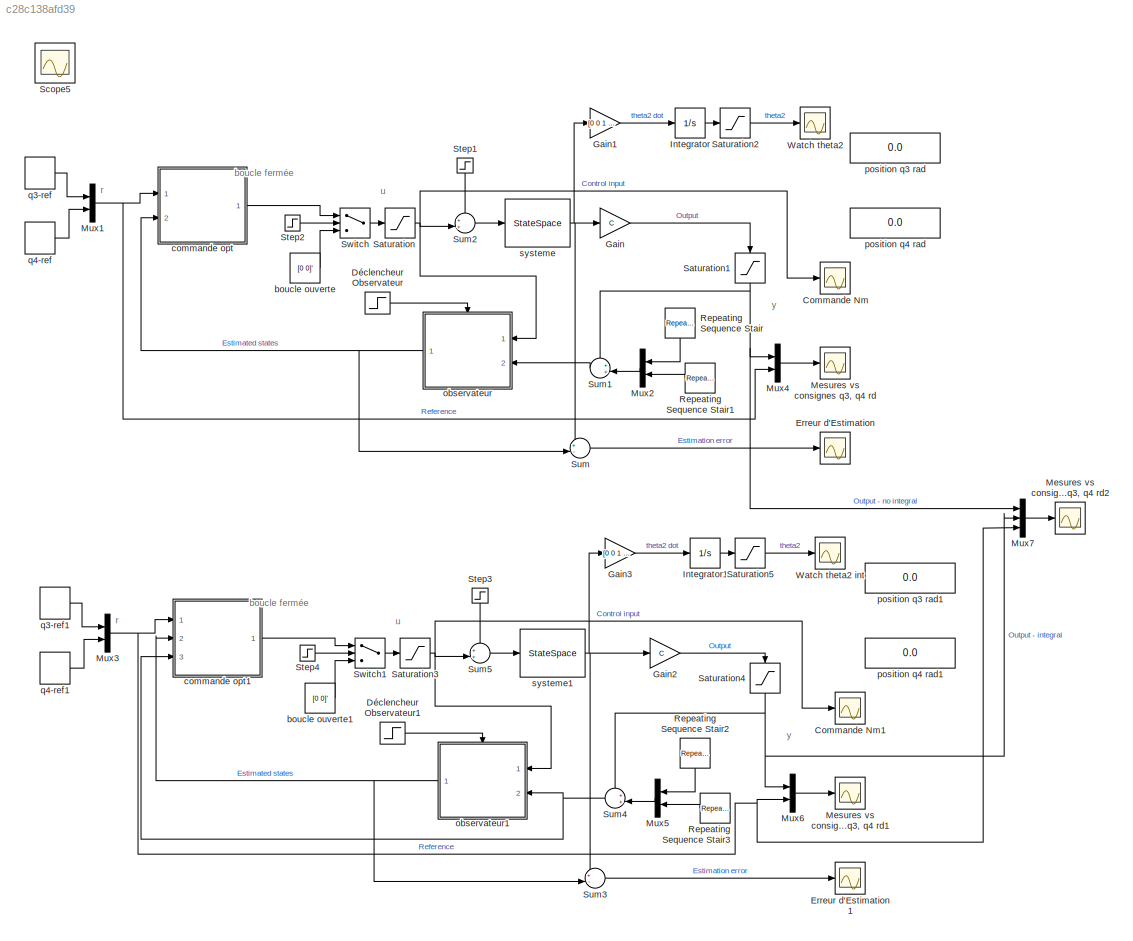
MODEL slx_c28c138afd39
KIND model
CONFIG AbsTol = auto
CONFIG EnableMultiTasking = on
CONFIG FixedStep = Ts
CONFIG MaxStep = auto
CONFIG MinStep = auto
CONFIG RelTol = 1e-3
CONFIG SampleTimeConstraint = Unconstrained
CONFIG Solver = ode3
CONFIG SolverName = ode3
CONFIG StartTime = 0.0
CONFIG StopTime = 70
BLOCK [Scope] Commande Nm
  Floating = off
  NumInputPorts = 1
  Ports = [1]
  ScopeSpecificationString = Simulink.scopes.TimeScopeBlockCfg('CurrentConfiguration', extmgr.ConfigurationSet(extmgr.Configuration('Core','General UI',true,'FigureColor',[1 1 1]),extmgr.Configuration('Core','Source UI',true),extmgr.Configuration('Sources','WiredSimulink',true,'DataLogging',true,'DataLoggingVariableName','commande','DataLoggingSaveFormat','StructureWithTime','DataLoggingDecimation','1','DataLoggingDecimateDat...<+2081ch>
BLOCK [Scope] Commande Nm1
  Floating = off
  NumInputPorts = 1
  Ports = [1]
  ScopeSpecificationString = Simulink.scopes.TimeScopeBlockCfg('CurrentConfiguration', extmgr.ConfigurationSet(extmgr.Configuration('Core','General UI',true,'FigureColor',[1 1 1]),extmgr.Configuration('Core','Source UI',true),extmgr.Configuration('Sources','WiredSimulink',true,'DataLoggingVariableName','ScopeData1','DataLoggingSaveFormat','StructureWithTime','DataLoggingDecimation','1','DataLoggingDecimateData',true),extmgr.C...<+2064ch>
BLOCK [Step] Déclencheur Observateur
  SampleTime = 0
BLOCK [Step] Déclencheur Observateur1
  SampleTime = 0
BLOCK [Scope] Erreur d'Estimation 
  Floating = off
  NumInputPorts = 1
  Ports = [1]
  ScopeSpecificationString = Simulink.scopes.TimeScopeBlockCfg('CurrentConfiguration', extmgr.ConfigurationSet(extmgr.Configuration('Core','General UI',true,'FigureColor',[1 1 1]),extmgr.Configuration('Core','Source UI',true),extmgr.Configuration('Sources','WiredSimulink',true,'DataLogging',true,'DataLoggingVariableName','theta3','DataLoggingSaveFormat','StructureWithTime','DataLoggingDecimation','1','DataLoggingDecimateData'...<+2603ch>
BLOCK [Scope] Erreur d'Estimation 1
  Floating = off
  NumInputPorts = 1
  Ports = [1]
  ScopeSpecificationString = Simulink.scopes.TimeScopeBlockCfg('CurrentConfiguration', extmgr.ConfigurationSet(extmgr.Configuration('Core','General UI',true,'FigureColor',[1 1 1]),extmgr.Configuration('Core','Source UI',true),extmgr.Configuration('Sources','WiredSimulink',true,'DataLogging',true,'DataLoggingVariableName','ScopeData2','DataLoggingSaveFormat','StructureWithTime','DataLoggingDecimation','1','DataLoggingDecimateD...<+2607ch>
BLOCK [Gain] Gain
  Gain = C
  Multiplication = Matrix(K*u) (u vector)
  OutDataTypeStr = Inherit: Inherit via internal rule
  ParamDataTypeStr = Inherit: Inherit via internal rule
  SaturateOnIntegerOverflow = off
BLOCK [Gain] Gain1
  Gain = [0 0 1 0 0]
  Multiplication = Matrix(K*u) (u vector)
  OutDataTypeStr = Inherit: Inherit via internal rule
  ParamDataTypeStr = Inherit: Inherit via internal rule
  SaturateOnIntegerOverflow = off
BLOCK [Gain] Gain2
  Gain = C
  Multiplication = Matrix(K*u) (u vector)
  OutDataTypeStr = Inherit: Inherit via internal rule
  ParamDataTypeStr = Inherit: Inherit via internal rule
  SaturateOnIntegerOverflow = off
BLOCK [Gain] Gain3
  Gain = [0 0 1 0 0]
  Multiplication = Matrix(K*u) (u vector)
  OutDataTypeStr = Inherit: Inherit via internal rule
  ParamDataTypeStr = Inherit: Inherit via internal rule
  SaturateOnIntegerOverflow = off
BLOCK [Integrator] Integrator
  Ports = [1, 1]
BLOCK [Integrator] Integrator1
  Ports = [1, 1]
BLOCK [Scope] Mesures vs consignes q3, q4 rd
  Floating = off
  NumInputPorts = 1
  Ports = [1]
  ScopeSpecificationString = Simulink.scopes.TimeScopeBlockCfg('CurrentConfiguration', extmgr.ConfigurationSet(extmgr.Configuration('Core','General UI',true,'FigureColor',[1 1 1]),extmgr.Configuration('Core','Source UI',true),extmgr.Configuration('Sources','WiredSimulink',true,'DataLogging',true,'DataLoggingVariableName','consigne','DataLoggingSaveFormat','StructureWithTime','DataLoggingDecimation','1','DataLoggingDecimateDat...<+2346ch>
BLOCK [Scope] Mesures vs consignes q3, q4 rd1
  Floating = off
  NumInputPorts = 1
  Ports = [1]
  ScopeSpecificationString = Simulink.scopes.TimeScopeBlockCfg('CurrentConfiguration', extmgr.ConfigurationSet(extmgr.Configuration('Core','General UI',true,'FigureColor',[1 1 1]),extmgr.Configuration('Core','Source UI',true),extmgr.Configuration('Sources','WiredSimulink',true,'DataLogging',true,'DataLoggingVariableName','ScopeData3','DataLoggingSaveFormat','StructureWithTime','DataLoggingDecimation','1','DataLoggingDecimateD...<+2342ch>
BLOCK [Scope] Mesures vs consignes q3, q4 rd2
  Floating = off
  NumInputPorts = 1
  Ports = [1]
  ScopeSpecificationString = Simulink.scopes.TimeScopeBlockCfg('CurrentConfiguration', extmgr.ConfigurationSet(extmgr.Configuration('Core','General UI',true,'FigureColor',[1 1 1]),extmgr.Configuration('Core','Source UI',true),extmgr.Configuration('Sources','WiredSimulink',true,'DataLogging',true,'DataLoggingVariableName','ScopeData1','DataLoggingSaveFormat','StructureWithTime','DataLoggingDecimation','1','DataLoggingDecimateD...<+2393ch>
BLOCK [Mux] Mux1
  DisplayOption = bar
  Inputs = 2
  Ports = [2, 1]
BLOCK [Mux] Mux2
  DisplayOption = bar
  Inputs = 2
  Ports = [2, 1]
BLOCK [Mux] Mux3
  DisplayOption = bar
  Inputs = 2
  Ports = [2, 1]
BLOCK [Mux] Mux4
  DisplayOption = bar
  Inputs = 2
  Ports = [2, 1]
BLOCK [Mux] Mux5
  Commented = on
  DisplayOption = bar
  Inputs = 2
  Ports = [2, 1]
BLOCK [Mux] Mux6
  DisplayOption = bar
  Inputs = 2
  Ports = [2, 1]
BLOCK [Mux] Mux7
  DisplayOption = bar
  Inputs = 3
  Ports = [3, 1]
BLOCK [Reference] Repeating Sequence Stair  REF=simulink/Sources/Repeating
Sequence
Stair
  Ports = [0, 1]
  SourceBlock = simulink/Sources/Repeating\nSequence\nStair
  SourceProductBaseCode = SL
  SourceProductName = Simulink
  SourceType = Repeating Sequence Stair
BLOCK [Reference] Repeating Sequence Stair1  REF=simulink/Sources/Repeating
Sequence
Stair
  Ports = [0, 1]
  SourceBlock = simulink/Sources/Repeating\nSequence\nStair
  SourceProductBaseCode = SL
  SourceProductName = Simulink
  SourceType = Repeating Sequence Stair
BLOCK [Reference] Repeating Sequence Stair2  REF=simulink/Sources/Repeating
Sequence
Stair
  Ports = [0, 1]
  SourceBlock = simulink/Sources/Repeating\nSequence\nStair
  SourceProductBaseCode = SL
  SourceProductName = Simulink
  SourceType = Repeating Sequence Stair
BLOCK [Reference] Repeating Sequence Stair3  REF=simulink/Sources/Repeating
Sequence
Stair
  Ports = [0, 1]
  SourceBlock = simulink/Sources/Repeating\nSequence\nStair
  SourceProductBaseCode = SL
  SourceProductName = Simulink
  SourceType = Repeating Sequence Stair
BLOCK [Saturate] Saturation
  InputPortMap = u0
  LowerLimit = -[0.2 3]
  Ports = [1, 1]
  UpperLimit = [0.2 3]
BLOCK [Saturate] Saturation1
  InputPortMap = u0
  LowerLimit = -(20*pi/180)*[1 1]
  Ports = [1, 1]
  UpperLimit = (20*pi/180)*[1 1]
BLOCK [Saturate] Saturation2
  InputPortMap = u0
  LowerLimit = -(20*pi/180)
  Ports = [1, 1]
  UpperLimit = (20*pi/180)
BLOCK [Saturate] Saturation3
  InputPortMap = u0
  LowerLimit = -[0.2 3]
  Ports = [1, 1]
  UpperLimit = [0.2 3]
BLOCK [Saturate] Saturation4
  InputPortMap = u0
  LowerLimit = -(20*pi/180)*[1 1]
  Ports = [1, 1]
  UpperLimit = (20*pi/180)*[1 1]
BLOCK [Saturate] Saturation5
  InputPortMap = u0
  LowerLimit = -(20*pi/180)
  Ports = [1, 1]
  UpperLimit = (20*pi/180)
BLOCK [Scope] Scope5
  Floating = off
  IOType = viewer
  NumInputPorts = 1
  Ports = []
  ScopeSpecificationString = Simulink.scopes.TimeScopeBlockCfg('CurrentConfiguration', extmgr.ConfigurationSet(extmgr.Configuration('Core','General UI',true),extmgr.Configuration('Core','Source UI',true),extmgr.Configuration('Sources','WiredSimulink',true,'DataLoggingMaxPoints','7500','DataLoggingLimitDataPoints',true,'DataLoggingSaveFormat','Array','DataLoggingDecimation','1','DataLoggingDecimateData',true),extmgr.Configurat...<+1658ch>
BLOCK [Step] Step1
  After = 0.001
  SampleTime = 0
  Time = 25
BLOCK [Step] Step2
  SampleTime = 0
  Time = 15
BLOCK [Step] Step3
  After = 0.001
  SampleTime = 0
  Time = 25
BLOCK [Step] Step4
  SampleTime = 0
  Time = 15
BLOCK [Sum] Sum
  IconShape = round
  InputSameDT = off
  Inputs = +-|
  OutDataTypeStr = Inherit: Inherit via internal rule
  Ports = [2, 1]
  SaturateOnIntegerOverflow = off
BLOCK [Sum] Sum1
  IconShape = round
  InputSameDT = off
  Inputs = ++|
  OutDataTypeStr = Inherit: Inherit via internal rule
  Ports = [2, 1]
  SaturateOnIntegerOverflow = off
BLOCK [Sum] Sum2
  IconShape = round
  InputSameDT = off
  Inputs = ++|
  OutDataTypeStr = Inherit: Inherit via internal rule
  Ports = [2, 1]
  SaturateOnIntegerOverflow = off
BLOCK [Sum] Sum3
  IconShape = round
  InputSameDT = off
  Inputs = +-|
  OutDataTypeStr = Inherit: Inherit via internal rule
  Ports = [2, 1]
  SaturateOnIntegerOverflow = off
BLOCK [Sum] Sum4
  IconShape = round
  InputSameDT = off
  Inputs = ++|
  OutDataTypeStr = Inherit: Inherit via internal rule
  Ports = [2, 1]
  SaturateOnIntegerOverflow = off
BLOCK [Sum] Sum5
  IconShape = round
  InputSameDT = off
  Inputs = ++|
  OutDataTypeStr = Inherit: Inherit via internal rule
  Ports = [2, 1]
  SaturateOnIntegerOverflow = off
BLOCK [Switch] Switch
  InputSameDT = off
  SaturateOnIntegerOverflow = off
  Threshold = 1
BLOCK [Switch] Switch1
  InputSameDT = off
  SaturateOnIntegerOverflow = off
  Threshold = 1
BLOCK [Scope] Watch theta2
  Floating = off
  NumInputPorts = 1
  Ports = [1]
  ScopeSpecificationString = Simulink.scopes.TimeScopeBlockCfg('CurrentConfiguration', extmgr.ConfigurationSet(extmgr.Configuration('Core','General UI',true,'FigureColor',[1 1 1]),extmgr.Configuration('Core','Source UI',true),extmgr.Configuration('Sources','WiredSimulink',true,'DataLoggingVariableName','ScopeData1','DataLoggingSaveFormat','StructureWithTime','DataLoggingDecimation','1','DataLoggingDecimateData',true),extmgr.C...<+2066ch>
BLOCK [Scope] Watch theta2 int
  Floating = off
  NumInputPorts = 1
  Ports = [1]
  ScopeSpecificationString = Simulink.scopes.TimeScopeBlockCfg('CurrentConfiguration', extmgr.ConfigurationSet(extmgr.Configuration('Core','General UI',true,'FigureColor',[1 1 1]),extmgr.Configuration('Core','Source UI',true),extmgr.Configuration('Sources','WiredSimulink',true,'DataLogging',true,'DataLoggingVariableName','ScopeData4','DataLoggingSaveFormat','StructureWithTime','DataLoggingDecimation','1','DataLoggingDecimateD...<+2085ch>
BLOCK [Constant] boucle ouverte
  Value = [0 0]'
BLOCK [Constant] boucle ouverte1
  Value = [0 0]'
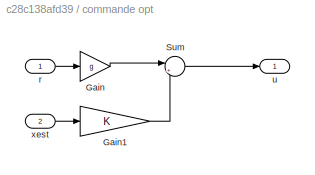
BLOCK [SubSystem] commande opt
  Ports = [2, 1]
  RequestExecContextInheritance = off
BLOCK [Gain] commande opt/Gain
  Gain = g
  Multiplication = Matrix(K*u) (u vector)
  OutDataTypeStr = Inherit: Inherit via internal rule
  ParamDataTypeStr = Inherit: Inherit via internal rule
  SaturateOnIntegerOverflow = off
BLOCK [Gain] commande opt/Gain1
  Gain = K
  Multiplication = Matrix(K*u) (u vector)
  OutDataTypeStr = Inherit: Inherit via internal rule
  ParamDataTypeStr = Inherit: Inherit via internal rule
  SaturateOnIntegerOverflow = off
BLOCK [Sum] commande opt/Sum
  IconShape = round
  InputSameDT = off
  Inputs = |+-
  OutDataTypeStr = Inherit: Inherit via internal rule
  Ports = [2, 1]
  SaturateOnIntegerOverflow = off
BLOCK [Inport] commande opt/r
  IconDisplay = Port number
BLOCK [Outport] commande opt/u
  IconDisplay = Port number
BLOCK [Inport] commande opt/xest
  IconDisplay = Port number
  Port = 2
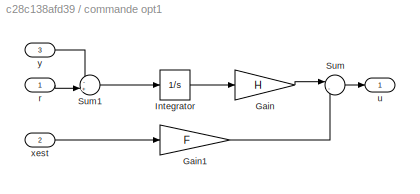
BLOCK [SubSystem] commande opt1
  Ports = [3, 1]
  RequestExecContextInheritance = off
BLOCK [Gain] commande opt1/Gain
  Gain = H
  Multiplication = Matrix(K*u) (u vector)
  OutDataTypeStr = Inherit: Inherit via internal rule
  ParamDataTypeStr = Inherit: Inherit via internal rule
  SaturateOnIntegerOverflow = off
BLOCK [Gain] commande opt1/Gain1
  Gain = F
  Multiplication = Matrix(K*u) (u vector)
  OutDataTypeStr = Inherit: Inherit via internal rule
  ParamDataTypeStr = Inherit: Inherit via internal rule
  SaturateOnIntegerOverflow = off
BLOCK [Integrator] commande opt1/Integrator
  Ports = [1, 1]
BLOCK [Sum] commande opt1/Sum
  IconShape = round
  InputSameDT = off
  Inputs = |--
  OutDataTypeStr = Inherit: Inherit via internal rule
  Ports = [2, 1]
  SaturateOnIntegerOverflow = off
BLOCK [Sum] commande opt1/Sum1
  IconShape = round
  InputSameDT = off
  Inputs = -+|
  OutDataTypeStr = Inherit: Inherit via internal rule
  Ports = [2, 1]
  SaturateOnIntegerOverflow = off
BLOCK [Inport] commande opt1/r
  IconDisplay = Port number
BLOCK [Outport] commande opt1/u
  IconDisplay = Port number
BLOCK [Inport] commande opt1/xest
  IconDisplay = Port number
  Port = 2
BLOCK [Inport] commande opt1/y
  IconDisplay = Port number
  Port = 3
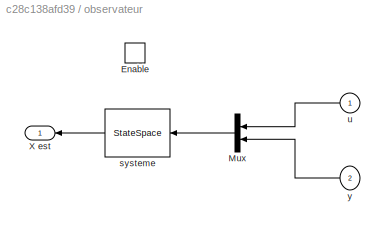
BLOCK [SubSystem] observateur
  Ports = [2, 1, 1]
  RequestExecContextInheritance = off
BLOCK [EnablePort] observateur/Enable
  Ports = []
BLOCK [Mux] observateur/Mux
  DisplayOption = bar
  Inputs = 2
  Ports = [2, 1]
BLOCK [Outport] observateur/X est
  IconDisplay = Port number
BLOCK [StateSpace] observateur/systeme
  A = Aobs
  B = [B L]
  C = eye(5,5)
  D = zeros(5,4)
  InitialCondition = 0.01
  Ports = [1, 1]
BLOCK [Inport] observateur/u
  IconDisplay = Port number
BLOCK [Inport] observateur/y
  IconDisplay = Port number
  Port = 2
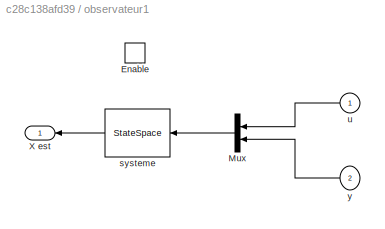
BLOCK [SubSystem] observateur1
  Ports = [2, 1, 1]
  RequestExecContextInheritance = off
BLOCK [EnablePort] observateur1/Enable
  Ports = []
BLOCK [Mux] observateur1/Mux
  DisplayOption = bar
  Inputs = 2
  Ports = [2, 1]
BLOCK [Outport] observateur1/X est
  IconDisplay = Port number
BLOCK [StateSpace] observateur1/systeme
  A = Aobs
  B = [B L]
  C = eye(5,5)
  D = zeros(5,4)
  InitialCondition = 0.01
  Ports = [1, 1]
BLOCK [Inport] observateur1/u
  IconDisplay = Port number
BLOCK [Inport] observateur1/y
  IconDisplay = Port number
  Port = 2
BLOCK [Display] position q3 rad
  Commented = on
  Decimation = 1
  Ports = [1]
BLOCK [Display] position q3 rad1
  Commented = on
  Decimation = 1
  Ports = [1]
BLOCK [Display] position q4 rad
  Commented = on
  Decimation = 1
  Ports = [1]
BLOCK [Display] position q4 rad1
  Commented = on
  Decimation = 1
  Ports = [1]
BLOCK [DiscretePulseGenerator] q3-ref
  Amplitude = 10*pi/180
  Period = 20
  PhaseDelay = 20
  Ports = [0, 1]
  PulseType = Time based
  PulseWidth = 50
BLOCK [DiscretePulseGenerator] q3-ref1
  Amplitude = 10*pi/180
  Period = 20
  PhaseDelay = 20
  Ports = [0, 1]
  PulseType = Time based
  PulseWidth = 50
BLOCK [DiscretePulseGenerator] q4-ref
  Amplitude = 10*pi/180
  Period = 20
  PhaseDelay = 25
  Ports = [0, 1]
  PulseType = Time based
  PulseWidth = 50
BLOCK [DiscretePulseGenerator] q4-ref1
  Amplitude = 10*pi/180
  Period = 20
  PhaseDelay = 25
  Ports = [0, 1]
  PulseType = Time based
  PulseWidth = 50
BLOCK [StateSpace] systeme
  A = A
  B = B
  C = eye(5,5)
  D = zeros(5,2)
  InitialCondition = 0
  Ports = [1, 1]
BLOCK [StateSpace] systeme1
  A = A
  B = B
  C = eye(5,5)
  D = zeros(5,2)
  InitialCondition = 0
  Ports = [1, 1]
ANNOTATION (root): boucle fermée
ANNOTATION (root): r
ANNOTATION (root): u
ANNOTATION (root): y
LINE Déclencheur Observateur1:1 -> observateur1:enable
LINE Déclencheur Observateur:1 -> observateur:enable
LINE Gain1:1 -> Integrator:1
LINE Gain2:1 -> Saturation4:1
LINE Gain3:1 -> Integrator1:1
LINE Gain:1 -> Saturation1:1
LINE Integrator1:1 -> Saturation5:1
LINE Integrator:1 -> Saturation2:1
NET Mux1:1 -> Mux4:2, commande opt:1
LINE Mux2:1 -> Sum1:2
NET Mux3:1 -> Mux6:2, Mux7:3, commande opt1:1
LINE Mux4:1 -> Mesures vs consignes q3, q4 rd:1
LINE Mux5:1 -> Sum4:2
LINE Mux6:1 -> Mesures vs consignes q3, q4 rd1:1
LINE Mux7:1 -> Mesures vs consignes q3, q4 rd2:1
LINE Repeating Sequence Stair1:1 -> Mux2:2
LINE Repeating Sequence Stair2:1 -> Mux5:1
LINE Repeating Sequence Stair3:1 -> Mux5:2
LINE Repeating Sequence Stair:1 -> Mux2:1
NET Saturation1:1 -> Mux4:1, Mux7:1, Sum1:1
LINE Saturation2:1 -> Watch theta2:1
NET Saturation3:1 -> Commande Nm1:1, Sum5:2, observateur1:1
NET Saturation4:1 -> Mux6:1, Mux7:2, Sum4:1
LINE Saturation5:1 -> Watch theta2 int:1
NET Saturation:1 -> Commande Nm:1, Sum2:2, observateur:1
LINE Step1:1 -> Sum2:1
LINE Step2:1 -> Switch:2
LINE Step3:1 -> Sum5:1
LINE Step4:1 -> Switch1:2
LINE Sum1:1 -> observateur:2
LINE Sum2:1 -> systeme:1
LINE Sum3:1 -> Erreur d'Estimation 1:1
NET Sum4:1 -> commande opt1:3, observateur1:2
LINE Sum5:1 -> systeme1:1
LINE Sum:1 -> Erreur d'Estimation :1
LINE Switch1:1 -> Saturation3:1
LINE Switch:1 -> Saturation:1
LINE boucle ouverte1:1 -> Switch1:3
LINE boucle ouverte:1 -> Switch:3
LINE commande opt/Gain1:1 -> commande opt/Sum:2
LINE commande opt/Gain:1 -> commande opt/Sum:1
LINE commande opt/Sum:1 -> commande opt/u:1
LINE commande opt/r:1 -> commande opt/Gain:1
LINE commande opt/xest:1 -> commande opt/Gain1:1
LINE commande opt1/Gain1:1 -> commande opt1/Sum:2
LINE commande opt1/Gain:1 -> commande opt1/Sum:1
LINE commande opt1/Integrator:1 -> commande opt1/Gain:1
LINE commande opt1/Sum1:1 -> commande opt1/Integrator:1
LINE commande opt1/Sum:1 -> commande opt1/u:1
LINE commande opt1/r:1 -> commande opt1/Sum1:2
LINE commande opt1/xest:1 -> commande opt1/Gain1:1
LINE commande opt1/y:1 -> commande opt1/Sum1:1
LINE commande opt1:1 -> Switch1:1
LINE commande opt:1 -> Switch:1
LINE observateur/Mux:1 -> observateur/systeme:1
LINE observateur/systeme:1 -> observateur/X est:1
LINE observateur/u:1 -> observateur/Mux:1
LINE observateur/y:1 -> observateur/Mux:2
LINE observateur1/Mux:1 -> observateur1/systeme:1
LINE observateur1/systeme:1 -> observateur1/X est:1
LINE observateur1/u:1 -> observateur1/Mux:1
LINE observateur1/y:1 -> observateur1/Mux:2
NET observateur1:1 -> Sum3:2, commande opt1:2
NET observateur:1 -> Sum:2, commande opt:2
LINE q3-ref1:1 -> Mux3:1
LINE q3-ref:1 -> Mux1:1
LINE q4-ref1:1 -> Mux3:2
LINE q4-ref:1 -> Mux1:2
NET systeme1:1 -> Gain2:1, Gain3:1, Sum3:1
NET systeme:1 -> Gain1:1, Gain:1, Sum:1
note: NET lines group one-source signal fan-out (src -> all destinations, sorted); 1:1 wires keep LINE
